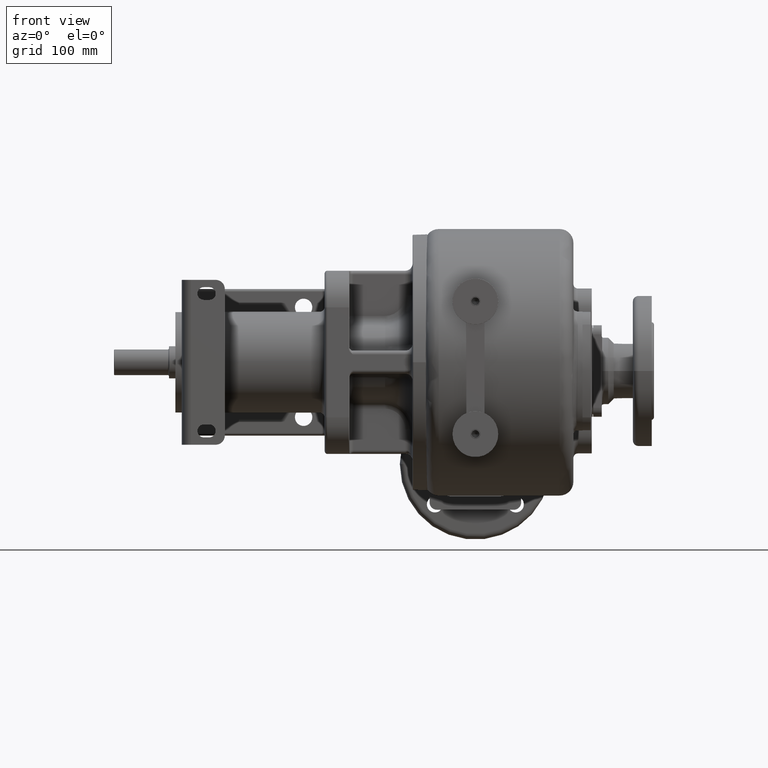
[diagram: clean part render]
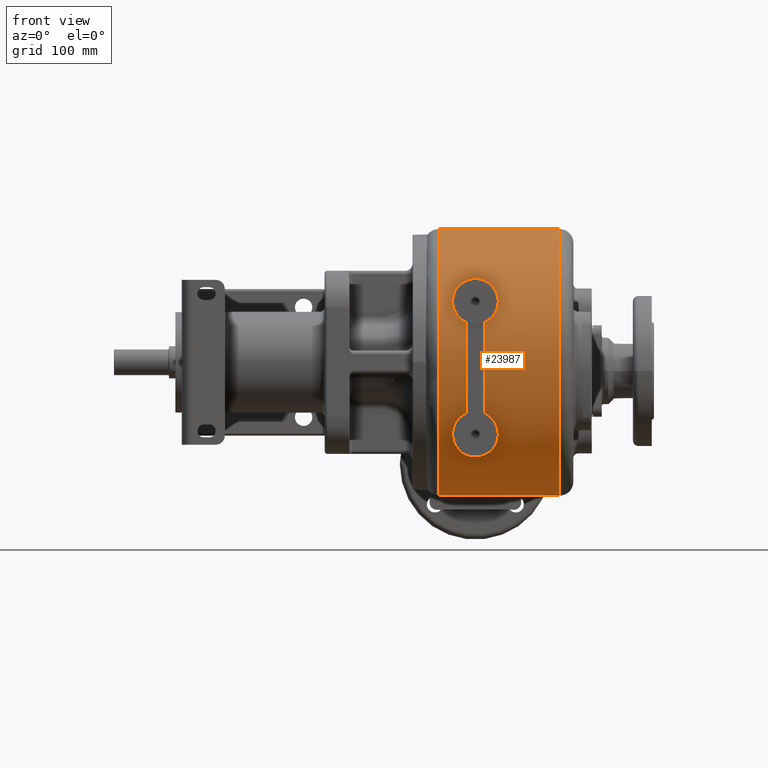
[diagram: same view with one face highlighted and labeled with its STEP entity id]
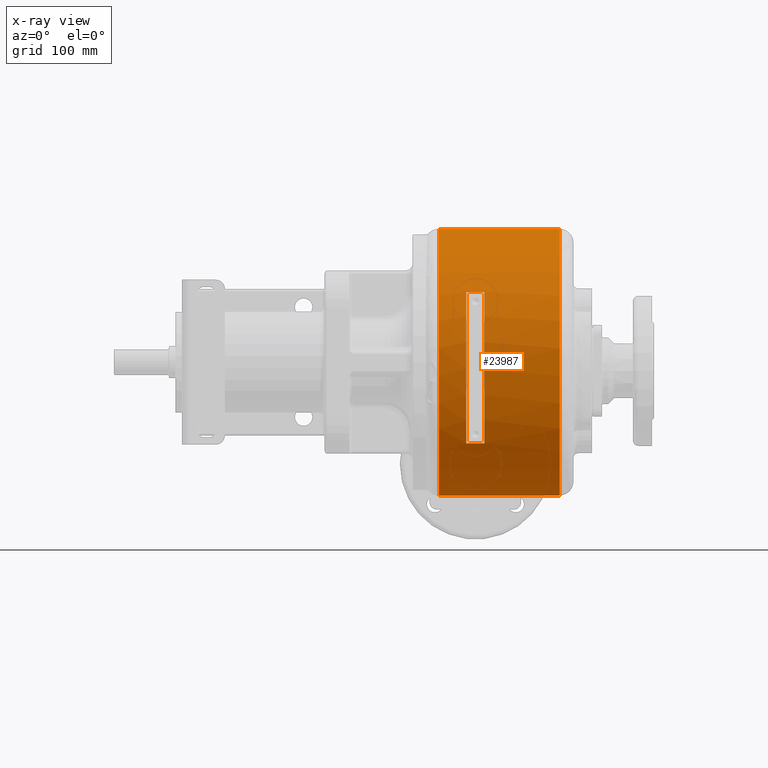
[diagram: x-ray of the same camera — body ghosted, the highlighted face saturated]
A machine part, front view. The second image highlights one B-rep face of the part: STEP entity #23987.
The next image is the same camera in x-ray: the body ghosted, the highlighted face saturated — about 0% of this face is hidden behind the body in this view.
In plain terms, the highlighted cylindrical surface (partial cylindrical patch) has radius 145.5 mm, axis along (-1, 0, 0).
Its self-contained STEP definition (entity closure, byte-faithful):
#5392=DIRECTION('',(1.E0,1.291895883200E-13,0.E0));
#5393=VECTOR('',#5392,1.32E2);
#5394=CARTESIAN_POINT('',(-4.E1,1.465E2,1.455E2));
#5395=LINE('',#5394,#5393);
#7518=CARTESIAN_POINT('',(-4.E1,1.465E2,0.E0));
#7519=DIRECTION('',(-1.E0,0.E0,0.E0));
#7520=DIRECTION('',(0.E0,0.E0,-1.E0));
#7521=AXIS2_PLACEMENT_3D('',#7518,#7519,#7520);
#7523=CARTESIAN_POINT('',(9.2E1,1.465E2,0.E0));
#7524=DIRECTION('',(1.E0,0.E0,0.E0));
#7525=DIRECTION('',(0.E0,0.E0,1.E0));
#7526=AXIS2_PLACEMENT_3D('',#7523,#7524,#7525);
#7528=DIRECTION('',(1.E0,-6.954706171228E-14,0.E0));
#7529=VECTOR('',#7528,1.32E2);
#7530=CARTESIAN_POINT('',(-4.E1,1.465E2,-1.455E2));
#7531=LINE('',#7530,#7529);
#7532=DIRECTION('',(-1.E0,0.E0,0.E0));
#7533=VECTOR('',#7532,2.E1);
#7534=CARTESIAN_POINT('',(1.E1,3.100974067048E1,-8.85E1));
#7535=LINE('',#7534,#7533);
#7536=CARTESIAN_POINT('',(1.E1,1.465E2,0.E0));
#7537=DIRECTION('',(-1.E0,0.E0,0.E0));
#7538=DIRECTION('',(0.E0,-7.937474868008E-1,-6.082474226804E-1));
#7539=AXIS2_PLACEMENT_3D('',#7536,#7537,#7538);
#7541=DIRECTION('',(-1.E0,0.E0,0.E0));
#7542=VECTOR('',#7541,2.E1);
#7543=CARTESIAN_POINT('',(1.E1,2.273409193158E1,7.65E1));
#7544=LINE('',#7543,#7542);
#7545=CARTESIAN_POINT('',(-1.E1,1.465E2,0.E0));
#7546=DIRECTION('',(-1.E0,0.E0,0.E0));
#7547=DIRECTION('',(0.E0,-7.937474868008E-1,-6.082474226804E-1));
#7548=AXIS2_PLACEMENT_3D('',#7545,#7546,#7547);
#11098=CARTESIAN_POINT('',(1.E1,3.100974067048E1,-8.85E1));
#11099=CARTESIAN_POINT('',(-1.E1,3.100974067048E1,-8.85E1));
#11100=VERTEX_POINT('',#11098);
#11101=VERTEX_POINT('',#11099);
#11102=CARTESIAN_POINT('',(1.E1,2.273409193158E1,7.65E1));
#11103=VERTEX_POINT('',#11102);
#11104=CARTESIAN_POINT('',(-1.E1,2.273409193158E1,7.65E1));
#11105=VERTEX_POINT('',#11104);
#11116=CARTESIAN_POINT('',(9.2E1,1.465E2,-1.455E2));
#11117=VERTEX_POINT('',#11116);
#11118=CARTESIAN_POINT('',(9.2E1,1.465E2,1.455E2));
#11119=VERTEX_POINT('',#11118);
#11148=CARTESIAN_POINT('',(-4.E1,1.465E2,-1.455E2));
#11149=VERTEX_POINT('',#11148);
#11150=CARTESIAN_POINT('',(-4.E1,1.465E2,1.455E2));
#11151=VERTEX_POINT('',#11150);
#23966=CARTESIAN_POINT('',(-5.5E1,1.465E2,0.E0));
#23967=DIRECTION('',(-1.E0,0.E0,0.E0));
#23968=DIRECTION('',(0.E0,0.E0,1.E0));
#23969=AXIS2_PLACEMENT_3D('',#23966,#23967,#23968);
#23970=CYLINDRICAL_SURFACE('',#23969,1.455E2);
#23971=ORIENTED_EDGE('',*,*,#20623,.T.);
#23972=ORIENTED_EDGE('',*,*,#21050,.T.);
#23973=ORIENTED_EDGE('',*,*,#18305,.T.);
#23974=ORIENTED_EDGE('',*,*,#20181,.F.);
#23975=EDGE_LOOP('',(#23971,#23972,#23973,#23974));
#23976=FACE_OUTER_BOUND('',#23975,.F.);
#23978=ORIENTED_EDGE('',*,*,#23977,.F.);
#23980=ORIENTED_EDGE('',*,*,#23979,.T.);
#23982=ORIENTED_EDGE('',*,*,#23981,.T.);
#23984=ORIENTED_EDGE('',*,*,#23983,.F.);
#23985=EDGE_LOOP('',(#23978,#23980,#23982,#23984));
#23986=FACE_BOUND('',#23985,.F.);
#23987=ADVANCED_FACE('',(#23976,#23986),#23970,.T.);
#7522=CIRCLE('',#7521,1.455E2);
#7527=CIRCLE('',#7526,1.455E2);
#7540=CIRCLE('',#7539,1.455E2);
#7549=CIRCLE('',#7548,1.455E2);
#18305=EDGE_CURVE('',#11119,#11117,#7527,.T.);
#20181=EDGE_CURVE('',#11149,#11117,#7531,.T.);
#20623=EDGE_CURVE('',#11149,#11151,#7522,.T.);
#21050=EDGE_CURVE('',#11151,#11119,#5395,.T.);
#23977=EDGE_CURVE('',#11100,#11101,#7535,.T.);
#23979=EDGE_CURVE('',#11100,#11103,#7540,.T.);
#23981=EDGE_CURVE('',#11103,#11105,#7544,.T.);
#23983=EDGE_CURVE('',#11101,#11105,#7549,.T.);